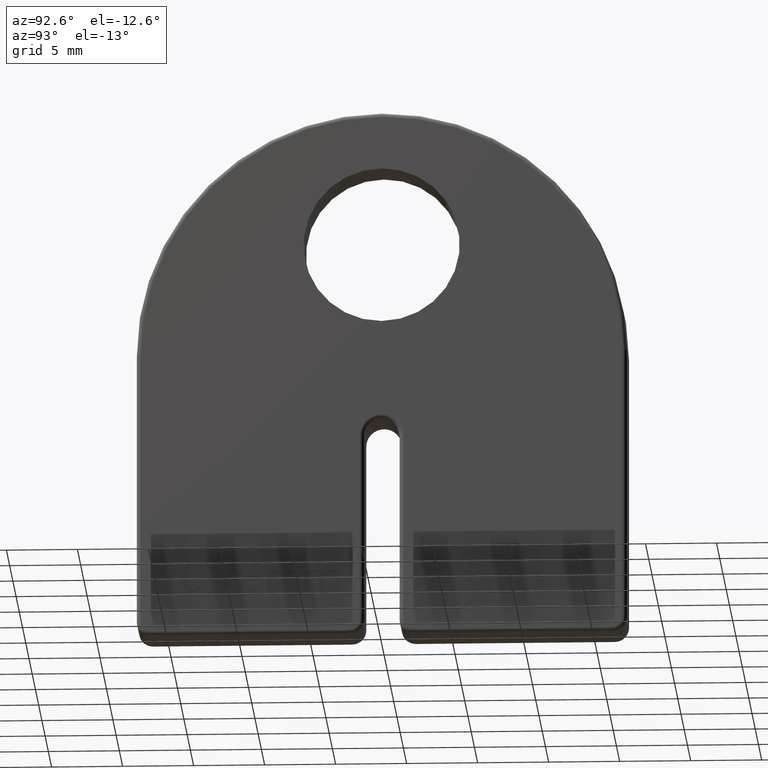
[diagram: clean part render]
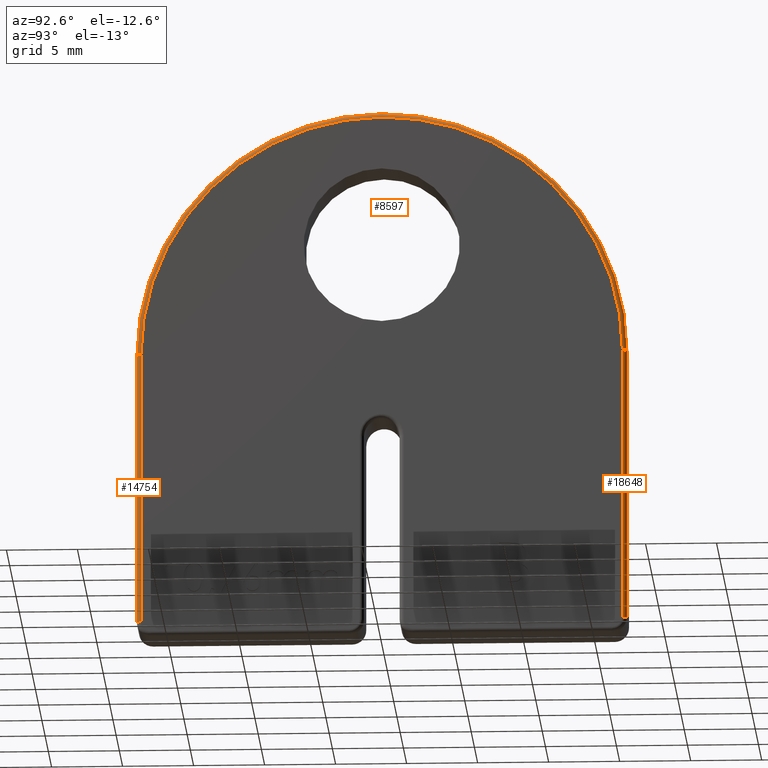
[diagram: same view with one multi-face feature highlighted, each face labeled with its STEP entity id]
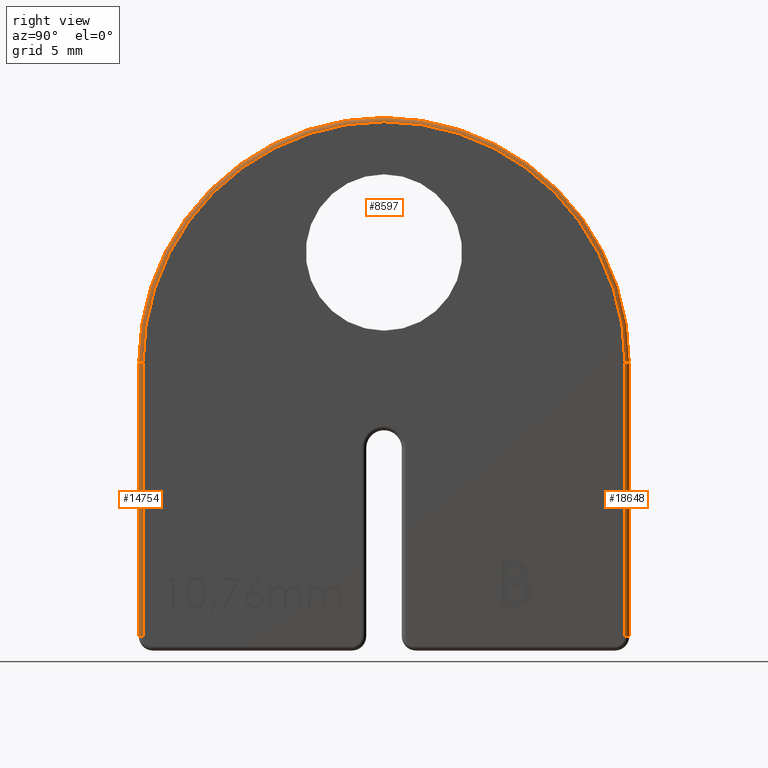
[diagram: same view with one multi-face feature highlighted, each face labeled with its STEP entity id]
A machine part, auxiliary view. The highlighted faces form ONE feature: a constant-radius fillet chain: 3 tangent blend faces with common blend radius 0.3 mm. The faces share edges in the B-rep.
A second angle (right view) of the same feature is appended — it is thin or edge-on in the first view.
Their STEP definitions:
[1] entity #8597 (Torus):
#118 = CARTESIAN_POINT ( 'NONE',  ( 3.299999999999999800, 0.0000000000000000000, 20.24999999999999600 ) ) ;
#517 = ORIENTED_EDGE ( 'NONE', *, *, #19760, .F. ) ;
#1060 = ORIENTED_EDGE ( 'NONE', *, *, #16644, .F. ) ;
#2553 = AXIS2_PLACEMENT_3D ( 'NONE', #6269, #11562, #9971 ) ;
#3095 = EDGE_LOOP ( 'NONE', ( #15458, #11689, #517, #1060 ) ) ;
#3549 = DIRECTION ( 'NONE',  ( 0.0000000000000000000, 0.0000000000000000000, -1.000000000000000000 ) ) ;
#3677 = VERTEX_POINT ( 'NONE', #11213 ) ;
#3696 = DIRECTION ( 'NONE',  ( 1.000000000000000000, 0.0000000000000000000, 0.0000000000000000000 ) ) ;
#3770 = DIRECTION ( 'NONE',  ( 1.000000000000000000, 0.0000000000000000000, 0.0000000000000000000 ) ) ;
#4565 = AXIS2_PLACEMENT_3D ( 'NONE', #9141, #14421, #3770 ) ;
#4577 = DIRECTION ( 'NONE',  ( 0.0000000000000000000, 0.0000000000000000000, -1.000000000000000000 ) ) ;
#4761 = CIRCLE ( 'NONE', #5490, 0.2999999999999999300 ) ;
#5039 = DIRECTION ( 'NONE',  ( -1.000000000000000000, 0.0000000000000000000, 0.0000000000000000000 ) ) ;
#5490 = AXIS2_PLACEMENT_3D ( 'NONE', #10383, #4577, #5039 ) ;
#5637 = TOROIDAL_SURFACE ( 'NONE', #2553, 16.94999999999999900, 0.2999999999999999900 ) ;
#5970 = CIRCLE ( 'NONE', #4565, 0.2999999999999999300 ) ;
#6269 = CARTESIAN_POINT ( 'NONE',  ( 3.299999999999999800, 0.0000000000000000000, 20.24999999999999600 ) ) ;
#7328 = DIRECTION ( 'NONE',  ( -1.000000000000000000, -0.0000000000000000000, -0.0000000000000000000 ) ) ;
#8091 = CARTESIAN_POINT ( 'NONE',  ( 3.299999999999999800, 17.25000000000000000, 20.24999999999999600 ) ) ;
#8597 = ADVANCED_FACE ( 'NONE', ( #22050 ), #5637, .T. ) ;
#9141 = CARTESIAN_POINT ( 'NONE',  ( 3.299999999999999800, -16.94999999999999900, 20.24999999999999600 ) ) ;
#9388 = CARTESIAN_POINT ( 'NONE',  ( 3.600000000000000100, 16.94999999999999900, 20.24999999999999600 ) ) ;
#9971 = DIRECTION ( 'NONE',  ( 0.0000000000000000000, 0.0000000000000000000, -1.000000000000000000 ) ) ;
#10235 = AXIS2_PLACEMENT_3D ( 'NONE', #10706, #3696, #3549 ) ;
#10383 = CARTESIAN_POINT ( 'NONE',  ( 3.299999999999999800, 16.94999999999999900, 20.24999999999999600 ) ) ;
#10706 = CARTESIAN_POINT ( 'NONE',  ( 3.600000000000000100, 0.0000000000000000000, 20.24999999999999600 ) ) ;
#11213 = CARTESIAN_POINT ( 'NONE',  ( 3.299999999999999800, -17.25000000000000000, 20.24999999999999600 ) ) ;
#11562 = DIRECTION ( 'NONE',  ( 1.000000000000000000, 0.0000000000000000000, 0.0000000000000000000 ) ) ;
#11689 = ORIENTED_EDGE ( 'NONE', *, *, #19863, .F. ) ;
#13134 = VERTEX_POINT ( 'NONE', #8091 ) ;
#13429 = VERTEX_POINT ( 'NONE', #9388 ) ;
#14421 = DIRECTION ( 'NONE',  ( -0.0000000000000000000, 0.0000000000000000000, 1.000000000000000000 ) ) ;
#15458 = ORIENTED_EDGE ( 'NONE', *, *, #16500, .T. ) ;
#15883 = CARTESIAN_POINT ( 'NONE',  ( 3.600000000000000100, -16.94999999999999900, 20.24999999999999600 ) ) ;
#16500 = EDGE_CURVE ( 'NONE', #3677, #22053, #5970, .T. ) ;
#16511 = AXIS2_PLACEMENT_3D ( 'NONE', #118, #7328, #17926 ) ;
#16644 = EDGE_CURVE ( 'NONE', #3677, #13134, #20424, .T. ) ;
#17926 = DIRECTION ( 'NONE',  ( 0.0000000000000000000, 0.0000000000000000000, -1.000000000000000000 ) ) ;
#19515 = CIRCLE ( 'NONE', #10235, 16.94999999999999900 ) ;
#19760 = EDGE_CURVE ( 'NONE', #13134, #13429, #4761, .T. ) ;
#19863 = EDGE_CURVE ( 'NONE', #13429, #22053, #19515, .T. ) ;
#20424 = CIRCLE ( 'NONE', #16511, 17.25000000000000000 ) ;
#22050 = FACE_OUTER_BOUND ( 'NONE', #3095, .T. ) ;
#22053 = VERTEX_POINT ( 'NONE', #15883 ) ;
[2] entity #18648 (Cylinder):
#1298 = DIRECTION ( 'NONE',  ( -0.0000000000000000000, -0.0000000000000000000, -1.000000000000000000 ) ) ;
#1865 = ORIENTED_EDGE ( 'NONE', *, *, #15831, .T. ) ;
#1948 = DIRECTION ( 'NONE',  ( 0.0000000000000000000, 0.0000000000000000000, -1.000000000000000000 ) ) ;
#2027 = VECTOR ( 'NONE', #1298, 1000.000000000000000 ) ;
#2245 = ORIENTED_EDGE ( 'NONE', *, *, #5448, .F. ) ;
#2845 = CARTESIAN_POINT ( 'NONE',  ( 3.299999999999999800, 16.94999999999999900, 1.000000000000000900 ) ) ;
#4276 = VECTOR ( 'NONE', #13646, 1000.000000000000000 ) ;
#4312 = CARTESIAN_POINT ( 'NONE',  ( 3.299999999999999800, 17.25000000000000000, 0.0000000000000000000 ) ) ;
#4577 = DIRECTION ( 'NONE',  ( 0.0000000000000000000, 0.0000000000000000000, -1.000000000000000000 ) ) ;
#4761 = CIRCLE ( 'NONE', #5490, 0.2999999999999999300 ) ;
#5027 = EDGE_LOOP ( 'NONE', ( #2245, #1865, #20215, #16953 ) ) ;
#5039 = DIRECTION ( 'NONE',  ( -1.000000000000000000, 0.0000000000000000000, 0.0000000000000000000 ) ) ;
#5448 = EDGE_CURVE ( 'NONE', #22353, #13429, #8998, .T. ) ;
#5490 = AXIS2_PLACEMENT_3D ( 'NONE', #10383, #4577, #5039 ) ;
#5898 = EDGE_CURVE ( 'NONE', #13134, #8925, #8978, .T. ) ;
#6012 = CARTESIAN_POINT ( 'NONE',  ( 3.299999999999999800, 17.25000000000000000, 1.000000000000000900 ) ) ;
#6770 = CARTESIAN_POINT ( 'NONE',  ( 3.600000000000000100, 16.94999999999999900, 1.000000000000000900 ) ) ;
#8091 = CARTESIAN_POINT ( 'NONE',  ( 3.299999999999999800, 17.25000000000000000, 20.24999999999999600 ) ) ;
#8797 = DIRECTION ( 'NONE',  ( -1.000000000000000000, 0.0000000000000000000, 0.0000000000000000000 ) ) ;
#8925 = VERTEX_POINT ( 'NONE', #6012 ) ;
#8978 = LINE ( 'NONE', #4312, #2027 ) ;
#8998 = LINE ( 'NONE', #11636, #4276 ) ;
#9053 = AXIS2_PLACEMENT_3D ( 'NONE', #16180, #1948, #8797 ) ;
#9388 = CARTESIAN_POINT ( 'NONE',  ( 3.600000000000000100, 16.94999999999999900, 20.24999999999999600 ) ) ;
#10369 = CIRCLE ( 'NONE', #15742, 0.2999999999999999300 ) ;
#10383 = CARTESIAN_POINT ( 'NONE',  ( 3.299999999999999800, 16.94999999999999900, 20.24999999999999600 ) ) ;
#10889 = FACE_OUTER_BOUND ( 'NONE', #5027, .T. ) ;
#11636 = CARTESIAN_POINT ( 'NONE',  ( 3.600000000000000100, 16.94999999999999900, 20.24999999999999600 ) ) ;
#13134 = VERTEX_POINT ( 'NONE', #8091 ) ;
#13429 = VERTEX_POINT ( 'NONE', #9388 ) ;
#13583 = DIRECTION ( 'NONE',  ( 1.000000000000000000, 0.0000000000000000000, 0.0000000000000000000 ) ) ;
#13646 = DIRECTION ( 'NONE',  ( -0.0000000000000000000, 0.0000000000000000000, 1.000000000000000000 ) ) ;
#14815 = CYLINDRICAL_SURFACE ( 'NONE', #9053, 0.2999999999999999300 ) ;
#15283 = DIRECTION ( 'NONE',  ( 0.0000000000000000000, 0.0000000000000000000, 1.000000000000000000 ) ) ;
#15742 = AXIS2_PLACEMENT_3D ( 'NONE', #2845, #15283, #13583 ) ;
#15831 = EDGE_CURVE ( 'NONE', #22353, #8925, #10369, .T. ) ;
#16180 = CARTESIAN_POINT ( 'NONE',  ( 3.299999999999999800, 16.94999999999999900, 20.24999999999999600 ) ) ;
#16953 = ORIENTED_EDGE ( 'NONE', *, *, #19760, .T. ) ;
#18648 = ADVANCED_FACE ( 'NONE', ( #10889 ), #14815, .T. ) ;
#19760 = EDGE_CURVE ( 'NONE', #13134, #13429, #4761, .T. ) ;
#20215 = ORIENTED_EDGE ( 'NONE', *, *, #5898, .F. ) ;
#22353 = VERTEX_POINT ( 'NONE', #6770 ) ;
[3] entity #14754 (Cylinder):
#207 = ORIENTED_EDGE ( 'NONE', *, *, #4768, .T. ) ;
#2073 = FACE_OUTER_BOUND ( 'NONE', #19354, .T. ) ;
#3677 = VERTEX_POINT ( 'NONE', #11213 ) ;
#3770 = DIRECTION ( 'NONE',  ( 1.000000000000000000, 0.0000000000000000000, 0.0000000000000000000 ) ) ;
#3931 = EDGE_CURVE ( 'NONE', #15551, #3677, #17691, .T. ) ;
#4252 = AXIS2_PLACEMENT_3D ( 'NONE', #9215, #17955, #7276 ) ;
#4565 = AXIS2_PLACEMENT_3D ( 'NONE', #9141, #14421, #3770 ) ;
#4704 = VERTEX_POINT ( 'NONE', #14971 ) ;
#4768 = EDGE_CURVE ( 'NONE', #15551, #4704, #17934, .T. ) ;
#4857 = ORIENTED_EDGE ( 'NONE', *, *, #16500, .F. ) ;
#5275 = DIRECTION ( 'NONE',  ( 0.0000000000000000000, 0.0000000000000000000, -1.000000000000000000 ) ) ;
#5402 = CYLINDRICAL_SURFACE ( 'NONE', #4252, 0.2999999999999999300 ) ;
#5970 = CIRCLE ( 'NONE', #4565, 0.2999999999999999300 ) ;
#7276 = DIRECTION ( 'NONE',  ( 1.000000000000000000, 0.0000000000000000000, 0.0000000000000000000 ) ) ;
#8685 = DIRECTION ( 'NONE',  ( -0.0000000000000000000, -0.0000000000000000000, 1.000000000000000000 ) ) ;
#9141 = CARTESIAN_POINT ( 'NONE',  ( 3.299999999999999800, -16.94999999999999900, 20.24999999999999600 ) ) ;
#9215 = CARTESIAN_POINT ( 'NONE',  ( 3.299999999999999800, -16.94999999999999900, 20.24999999999999600 ) ) ;
#9320 = VECTOR ( 'NONE', #8685, 1000.000000000000000 ) ;
#10364 = EDGE_CURVE ( 'NONE', #22053, #4704, #18959, .T. ) ;
#11213 = CARTESIAN_POINT ( 'NONE',  ( 3.299999999999999800, -17.25000000000000000, 20.24999999999999600 ) ) ;
#11713 = VECTOR ( 'NONE', #5275, 1000.000000000000000 ) ;
#13450 = CARTESIAN_POINT ( 'NONE',  ( 3.600000000000000100, -16.94999999999999900, 0.0000000000000000000 ) ) ;
#13834 = CARTESIAN_POINT ( 'NONE',  ( 3.299999999999999800, -17.25000000000000000, 20.24999999999999600 ) ) ;
#14419 = CARTESIAN_POINT ( 'NONE',  ( 3.299999999999999800, -17.25000000000000000, 1.000000000000000900 ) ) ;
#14421 = DIRECTION ( 'NONE',  ( -0.0000000000000000000, 0.0000000000000000000, 1.000000000000000000 ) ) ;
#14602 = ORIENTED_EDGE ( 'NONE', *, *, #10364, .F. ) ;
#14754 = ADVANCED_FACE ( 'NONE', ( #2073 ), #5402, .T. ) ;
#14971 = CARTESIAN_POINT ( 'NONE',  ( 3.600000000000000100, -16.94999999999999900, 1.000000000000000000 ) ) ;
#15052 = AXIS2_PLACEMENT_3D ( 'NONE', #16848, #20416, #18646 ) ;
#15456 = ORIENTED_EDGE ( 'NONE', *, *, #3931, .F. ) ;
#15551 = VERTEX_POINT ( 'NONE', #14419 ) ;
#15883 = CARTESIAN_POINT ( 'NONE',  ( 3.600000000000000100, -16.94999999999999900, 20.24999999999999600 ) ) ;
#16500 = EDGE_CURVE ( 'NONE', #3677, #22053, #5970, .T. ) ;
#16848 = CARTESIAN_POINT ( 'NONE',  ( 3.299999999999999800, -16.94999999999999900, 1.000000000000000000 ) ) ;
#17691 = LINE ( 'NONE', #13834, #9320 ) ;
#17934 = CIRCLE ( 'NONE', #15052, 0.2999999999999999300 ) ;
#17955 = DIRECTION ( 'NONE',  ( 0.0000000000000000000, -0.0000000000000000000, 1.000000000000000000 ) ) ;
#18646 = DIRECTION ( 'NONE',  ( 1.000000000000000000, 0.0000000000000000000, 0.0000000000000000000 ) ) ;
#18959 = LINE ( 'NONE', #13450, #11713 ) ;
#19354 = EDGE_LOOP ( 'NONE', ( #15456, #207, #14602, #4857 ) ) ;
#20416 = DIRECTION ( 'NONE',  ( -0.0000000000000000000, 0.0000000000000000000, 1.000000000000000000 ) ) ;
#22053 = VERTEX_POINT ( 'NONE', #15883 ) ;